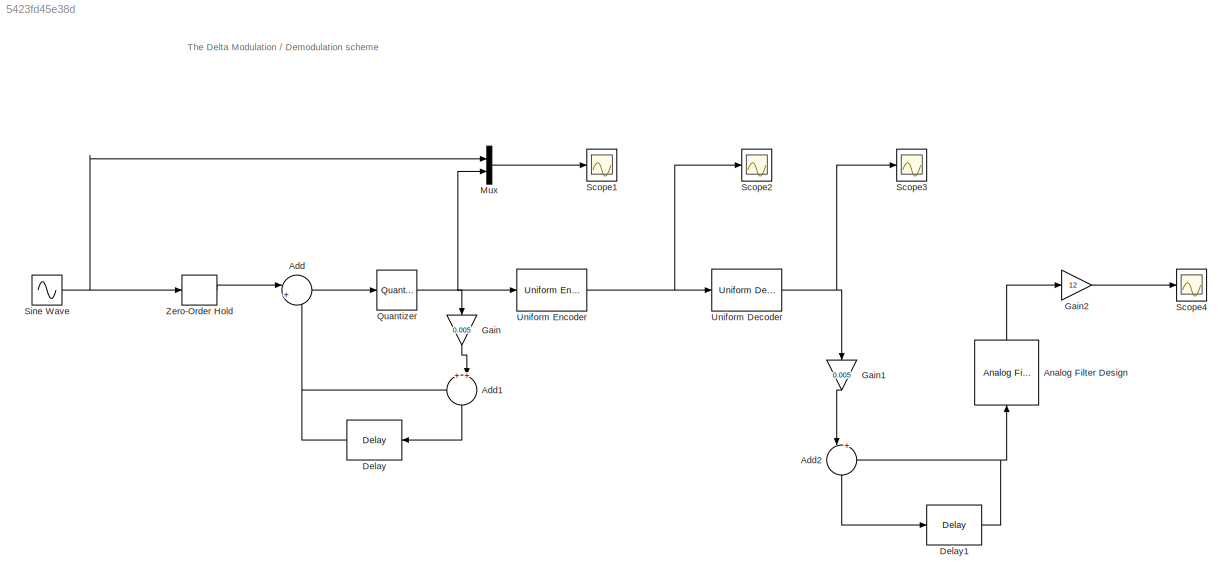
MODEL slx_5423fd45e38d
KIND model
CONFIG AbsTol = auto
CONFIG EnableMultiTasking = off
CONFIG FixedStep = auto
CONFIG MaxStep = auto
CONFIG MinStep = auto
CONFIG RelTol = 1e-3
CONFIG SampleTimeConstraint = Unconstrained
CONFIG Solver = VariableStepAuto
CONFIG SolverName = VariableStepAuto
CONFIG StartTime = 0.0
CONFIG StopTime = 10.0
BLOCK [Sum] Add
  Inputs = |+-
  Ports = [2, 1]
BLOCK [Sum] Add1
  Inputs = ++|
  NameLocation = left
  Ports = [2, 1]
BLOCK [Sum] Add2
  Inputs = |++
  NameLocation = left
  Ports = [2, 1]
BLOCK [Reference] Analog Filter Design  REF=dsparch4/Analog
Filter Design
  NameLocation = right
  Ports = [1, 1]
  SourceBlock = dsparch4/Analog\nFilter Design
  SourceProductBaseCode = DS
  SourceType = Analog Filter Design
BLOCK [Delay] Delay
  DelayLength = 1
  InitialCondition = 0
  InputPortMap = u0
  Ports = [1, 1]
  UseCircularBuffer = on
  UserDataPersistent = on
BLOCK [Delay] Delay1
  DelayLength = 1
  InitialCondition = 0
  InputPortMap = u0
  Ports = [1, 1]
  UseCircularBuffer = on
  UserDataPersistent = on
BLOCK [Gain] Gain
  Gain = 0.005
  NameLocation = left
BLOCK [Gain] Gain1
  Gain = 0.005
  NameLocation = left
BLOCK [Gain] Gain2
  Gain = 12
BLOCK [Mux] Mux
  DisplayOption = bar
  Inputs = 2
  Ports = [2, 1]
BLOCK [Quantizer] Quantizer
  LinearizeAsGain = off
BLOCK [Scope] Scope1
  Floating = off
  NumInputPorts = 1
  Ports = [1]
  ScopeSpecificationString = Simulink.scopes.TimeScopeBlockCfg('CurrentConfiguration', extmgr.ConfigurationSet(extmgr.Configuration('Core','General UI',true),extmgr.Configuration('Core','Source UI',true),extmgr.Configuration('Sources','WiredSimulink',true,'DataLoggingVariableName','ScopeData1'),extmgr.Configuration('Visuals','Time Domain',true,'SerializedDisplays',{struct('MinYLimReal','-0.97429','MaxYLimReal','0.69238','YLab...<+1757ch>
BLOCK [Scope] Scope2
  Floating = off
  NumInputPorts = 1
  Ports = [1]
  ScopeSpecificationString = Simulink.scopes.TimeScopeBlockCfg('CurrentConfiguration', extmgr.ConfigurationSet(extmgr.Configuration('Core','General UI',true),extmgr.Configuration('Core','Source UI',true),extmgr.Configuration('Sources','WiredSimulink',true,'DataLoggingVariableName','ScopeData2'),extmgr.Configuration('Visuals','Time Domain',true,'SerializedDisplays',{struct('MinYLimReal','8.00000','MaxYLimReal','248.00000','YLa...<+1429ch>
BLOCK [Scope] Scope3
  Floating = off
  NumInputPorts = 1
  Ports = [1]
  ScopeSpecificationString = Simulink.scopes.TimeScopeBlockCfg('CurrentConfiguration', extmgr.ConfigurationSet(extmgr.Configuration('Core','General UI',true),extmgr.Configuration('Core','Source UI',true),extmgr.Configuration('Sources','WiredSimulink',true),extmgr.Configuration('Visuals','Time Domain',true,'SerializedDisplays',{struct('MinYLimReal','-1.65081','MaxYLimReal','1.80129','YLabelReal','','MinYLimMag','0.00000','MaxY...<+1384ch>
BLOCK [Scope] Scope4
  Floating = off
  NumInputPorts = 1
  Ports = [1]
  ScopeSpecificationString = Simulink.scopes.TimeScopeBlockCfg('CurrentConfiguration', extmgr.ConfigurationSet(extmgr.Configuration('Core','General UI',true),extmgr.Configuration('Core','Source UI',true),extmgr.Configuration('Sources','WiredSimulink',true,'DataLoggingVariableName','ScopeData3'),extmgr.Configuration('Visuals','Time Domain',true,'SerializedDisplays',{struct('MinYLimReal','-1.90468','MaxYLimReal','2.81498','YLab...<+1718ch>
BLOCK [Sin] Sine Wave
  Amplitude = 1.5
  Frequency = 2*pi*80
  Ports = [0, 1]
  SampleTime = 0
BLOCK [Reference] Uniform Decoder  REF=dspquant2/Uniform
Decoder
  Ports = [1, 1]
  SourceBlock = dspquant2/Uniform\nDecoder
  SourceProductBaseCode = DS
  SourceType = Uniform Decoder
BLOCK [Reference] Uniform Encoder  REF=dspquant2/Uniform
Encoder
  Ports = [1, 1]
  SourceBlock = dspquant2/Uniform\nEncoder
  SourceProductBaseCode = DS
  SourceType = Uniform Encoder
BLOCK [ZeroOrderHold] Zero-Order Hold
  SampleTime = 1/8000
ANNOTATION (root): The Delta Modulation / Demodulation scheme
LINE Add1:1 -> Delay:1
LINE Add2:1 -> Delay1:1
LINE Add:1 -> Quantizer:1
LINE Analog Filter Design:1 -> Gain2:1
NET Delay1:1 -> Add2:2, Analog Filter Design:1
NET Delay:1 -> Add1:1, Add:2
LINE Gain1:1 -> Add2:1
LINE Gain2:1 -> Scope4:1
LINE Gain:1 -> Add1:2
LINE Mux:1 -> Scope1:1
NET Quantizer:1 -> Gain:1, Mux:2, Uniform Encoder:1
NET Sine Wave:1 -> Mux:1, Zero-Order Hold:1
NET Uniform Decoder:1 -> Gain1:1, Scope3:1
NET Uniform Encoder:1 -> Scope2:1, Uniform Decoder:1
LINE Zero-Order Hold:1 -> Add:1
note: NET lines group one-source signal fan-out (src -> all destinations, sorted); 1:1 wires keep LINE
